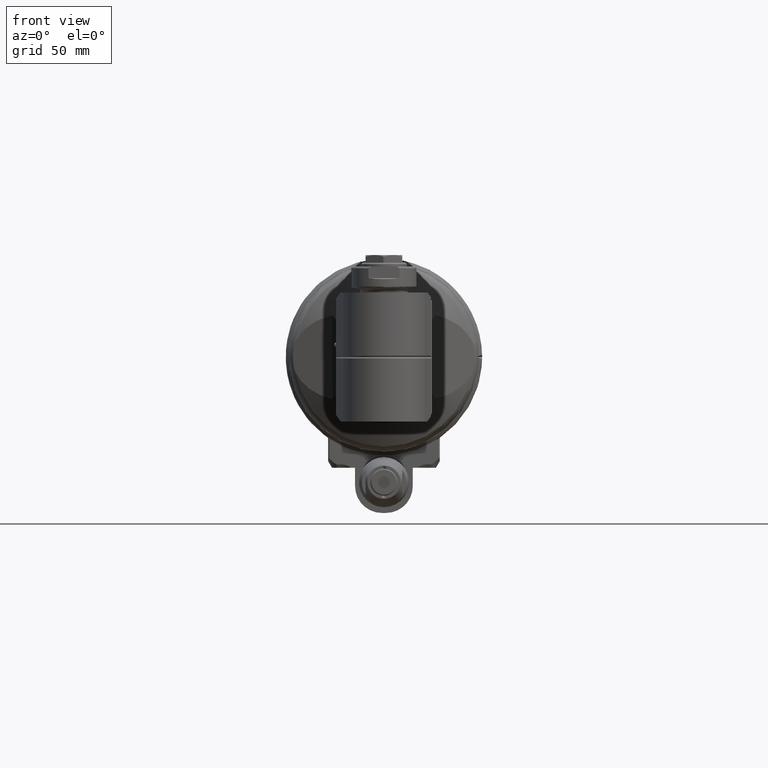
[diagram: clean part render]
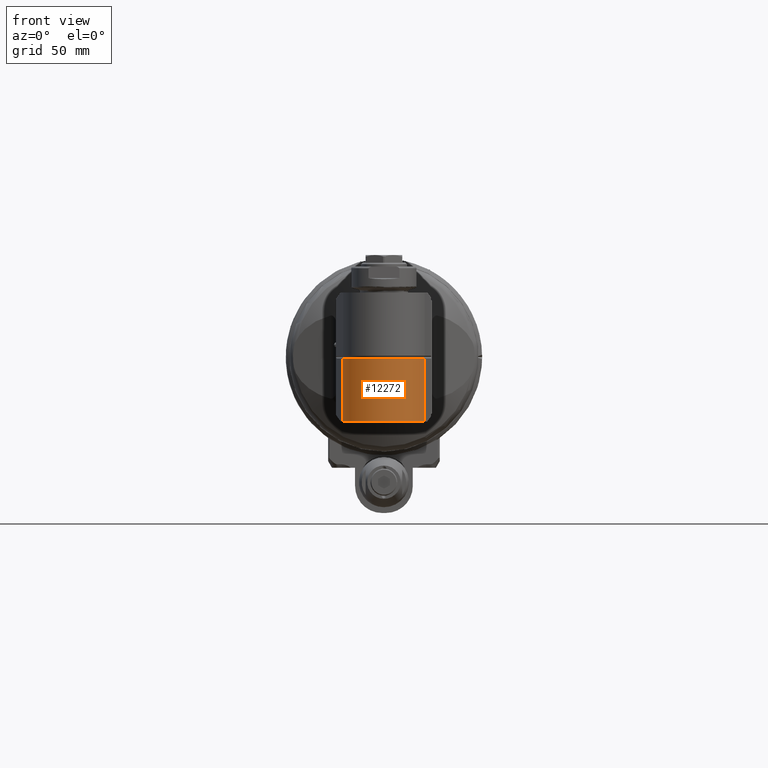
[diagram: same view with one face highlighted and labeled with its STEP entity id]
A machine part, front view. The second image highlights one B-rep face of the part: STEP entity #12272.
In plain terms, the highlighted cylindrical surface (partial cylindrical patch) has radius 22 mm, axis along (-0, 0, -1).
Its self-contained STEP definition (entity closure, byte-faithful):
#520=CYLINDRICAL_SURFACE('',#13149,22.);
#933=CIRCLE('',#13150,22.);
#934=CIRCLE('',#13151,22.);
#1588=FACE_OUTER_BOUND('',#2306,.T.);
#2306=EDGE_LOOP('',(#8629,#8630,#8631,#8632));
#3115=LINE('',#18936,#4074);
#3116=LINE('',#18941,#4075);
#4074=VECTOR('',#14850,32.83431457505);
#4075=VECTOR('',#14855,32.83431457505);
#5096=VERTEX_POINT('',#18748);
#5136=VERTEX_POINT('',#18934);
#5137=VERTEX_POINT('',#18938);
#5138=VERTEX_POINT('',#18940);
#6534=EDGE_CURVE('',#5096,#5136,#3115,.T.);
#6535=EDGE_CURVE('',#5137,#5136,#933,.T.);
#6536=EDGE_CURVE('',#5137,#5138,#3116,.T.);
#6537=EDGE_CURVE('',#5096,#5138,#934,.T.);
#8629=ORIENTED_EDGE('',*,*,#6534,.T.);
#8630=ORIENTED_EDGE('',*,*,#6535,.F.);
#8631=ORIENTED_EDGE('',*,*,#6536,.T.);
#8632=ORIENTED_EDGE('',*,*,#6537,.F.);
#12272=ADVANCED_FACE('',(#1588),#520,.T.);
#13149=AXIS2_PLACEMENT_3D('',#18937,#14851,#14852);
#13150=AXIS2_PLACEMENT_3D('',#18939,#14853,#14854);
#13151=AXIS2_PLACEMENT_3D('',#18942,#14856,#14857);
#14850=DIRECTION('',(0.,1.,0.));
#14851=DIRECTION('center_axis',(0.,1.,0.));
#14852=DIRECTION('ref_axis',(1.,0.,-1.22464679914735E-16));
#14853=DIRECTION('center_axis',(0.,1.,0.));
#14854=DIRECTION('ref_axis',(1.,0.,0.));
#14855=DIRECTION('',(0.,-1.,0.));
#14856=DIRECTION('center_axis',(0.,-1.,0.));
#14857=DIRECTION('ref_axis',(1.,0.,0.));
#18748=CARTESIAN_POINT('',(185.6940189923,0.6656854249493,-21.25036817836));
#18934=CARTESIAN_POINT('',(185.6940189923,33.5,-21.25036817836));
#18936=CARTESIAN_POINT('',(185.6940189923,0.6656854249493,-21.25036817836));
#18937=CARTESIAN_POINT('Origin',(180.,-71.53832403312,0.));
#18938=CARTESIAN_POINT('',(185.6940189923,33.5,21.25036817836));
#18939=CARTESIAN_POINT('Origin',(180.,33.5,0.));
#18940=CARTESIAN_POINT('',(185.6940189923,0.6656854249493,21.25036817836));
#18941=CARTESIAN_POINT('',(185.6940189923,33.5,21.25036817836));
#18942=CARTESIAN_POINT('Origin',(180.,0.6656854249493,0.));